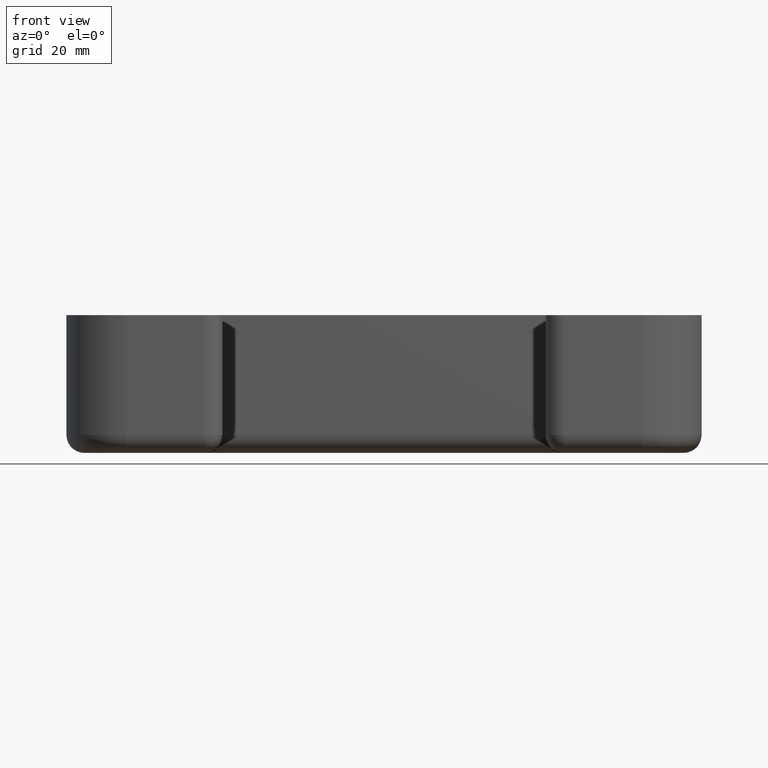
[diagram: clean part render]
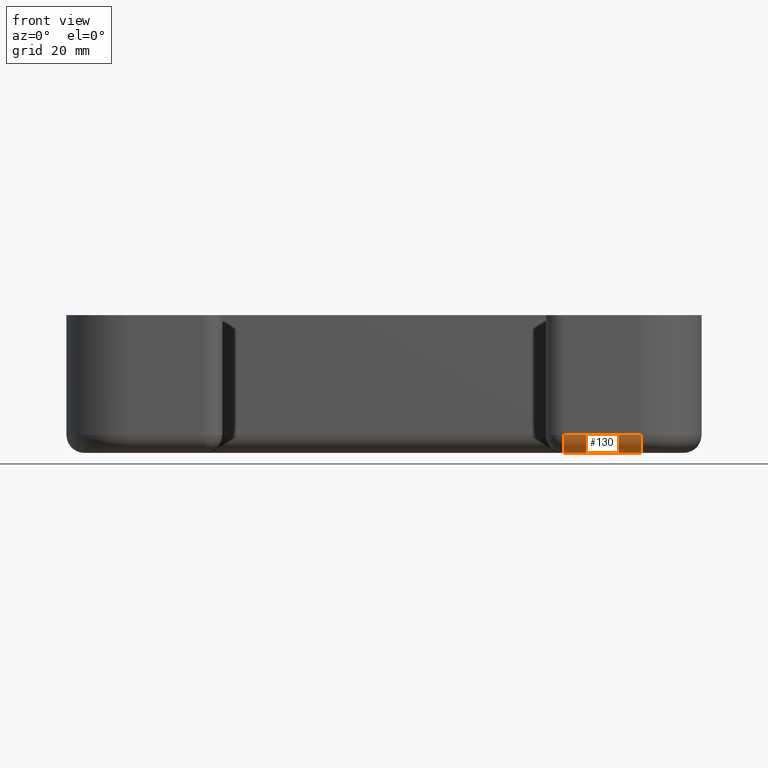
[diagram: same view with one face highlighted and labeled with its STEP entity id]
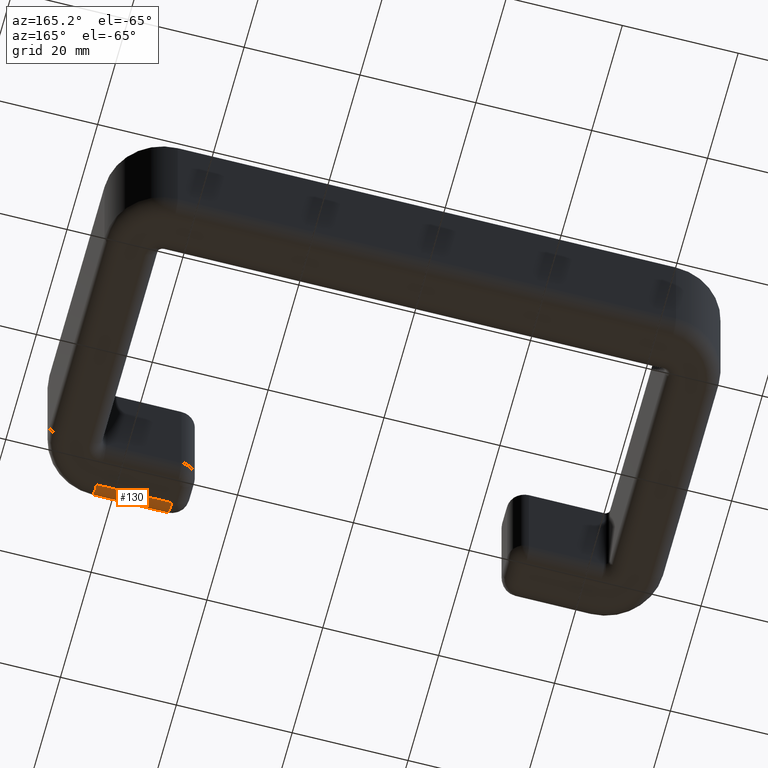
[diagram: same view with one face highlighted and labeled with its STEP entity id]
A machine part, front view. The second image highlights one B-rep face of the part: STEP entity #130.
A second angle (auxiliary view) of the same face is appended — the face is thin or edge-on in the first view.
In plain terms, the highlighted cylindrical surface (edge-blend (fillet) strip) has radius 3 mm, axis along (1, -0, 0).
Its self-contained STEP definition (entity closure, byte-faithful):
#130 = ADVANCED_FACE( '', ( #258 ), #259, .T. );
#258 = FACE_OUTER_BOUND( '', #401, .T. );
#259 = CYLINDRICAL_SURFACE( '', #402, 3.00000000000000 );
#401 = EDGE_LOOP( '', ( #888, #889, #890, #891 ) );
#402 = AXIS2_PLACEMENT_3D( '', #892, #893, #894 );
#888 = ORIENTED_EDGE( '', *, *, #1160, .T. );
#889 = ORIENTED_EDGE( '', *, *, #1123, .F. );
#890 = ORIENTED_EDGE( '', *, *, #1161, .F. );
#891 = ORIENTED_EDGE( '', *, *, #1103, .F. );
#892 = CARTESIAN_POINT( '', ( -43.0000000000000, -25.0000000000000, -20.0000000000000 ) );
#893 = DIRECTION( '', ( 1.00000000000000, -4.44089209850063E-017, 0.000000000000000 ) );
#894 = DIRECTION( '', ( -4.44089209850063E-017, -1.00000000000000, 0.000000000000000 ) );
#1103 = EDGE_CURVE( '', #1365, #1367, #1368, .T. );
#1123 = EDGE_CURVE( '', #1397, #1399, #1400, .F. );
#1160 = EDGE_CURVE( '', #1365, #1399, #1444, .T. );
#1161 = EDGE_CURVE( '', #1367, #1397, #1445, .T. );
#1365 = VERTEX_POINT( '', #1707 );
#1367 = VERTEX_POINT( '', #1709 );
#1368 = LINE( '', #1710, #1711 );
#1397 = VERTEX_POINT( '', #1754 );
#1399 = VERTEX_POINT( '', #1757 );
#1400 = LINE( '', #1758, #1759 );
#1444 = CIRCLE( '', #1832, 3.00000000000000 );
#1445 = CIRCLE( '', #1833, 3.00000000000000 );
#1707 = CARTESIAN_POINT( '', ( 43.0000000000000, -25.0000000000000, -23.0000000000000 ) );
#1709 = CARTESIAN_POINT( '', ( 30.0000000000000, -25.0000000000000, -23.0000000000000 ) );
#1710 = CARTESIAN_POINT( '', ( -43.0000000000000, -25.0000000000000, -23.0000000000000 ) );
#1711 = VECTOR( '', #2045, 1000.00000000000 );
#1754 = CARTESIAN_POINT( '', ( 30.0000000000000, -28.0000000000000, -20.0000000000000 ) );
#1757 = CARTESIAN_POINT( '', ( 43.0000000000000, -28.0000000000000, -20.0000000000000 ) );
#1758 = CARTESIAN_POINT( '', ( 43.0000000000000, -28.0000000000000, -20.0000000000000 ) );
#1759 = VECTOR( '', #2073, 1000.00000000000 );
#1832 = AXIS2_PLACEMENT_3D( '', #2124, #2125, #2126 );
#1833 = AXIS2_PLACEMENT_3D( '', #2127, #2128, #2129 );
#2045 = DIRECTION( '', ( -1.00000000000000, 4.44089209850063E-017, 0.000000000000000 ) );
#2073 = DIRECTION( '', ( -1.00000000000000, 4.44089209850063E-017, 0.000000000000000 ) );
#2124 = CARTESIAN_POINT( '', ( 43.0000000000000, -25.0000000000000, -20.0000000000000 ) );
#2125 = DIRECTION( '', ( -1.00000000000000, 0.000000000000000, 0.000000000000000 ) );
#2126 = DIRECTION( '', ( 0.000000000000000, 0.000000000000000, 1.00000000000000 ) );
#2127 = CARTESIAN_POINT( '', ( 30.0000000000000, -25.0000000000000, -20.0000000000000 ) );
#2128 = DIRECTION( '', ( -1.00000000000000, 0.000000000000000, 0.000000000000000 ) );
#2129 = DIRECTION( '', ( 0.000000000000000, 0.000000000000000, 1.00000000000000 ) );